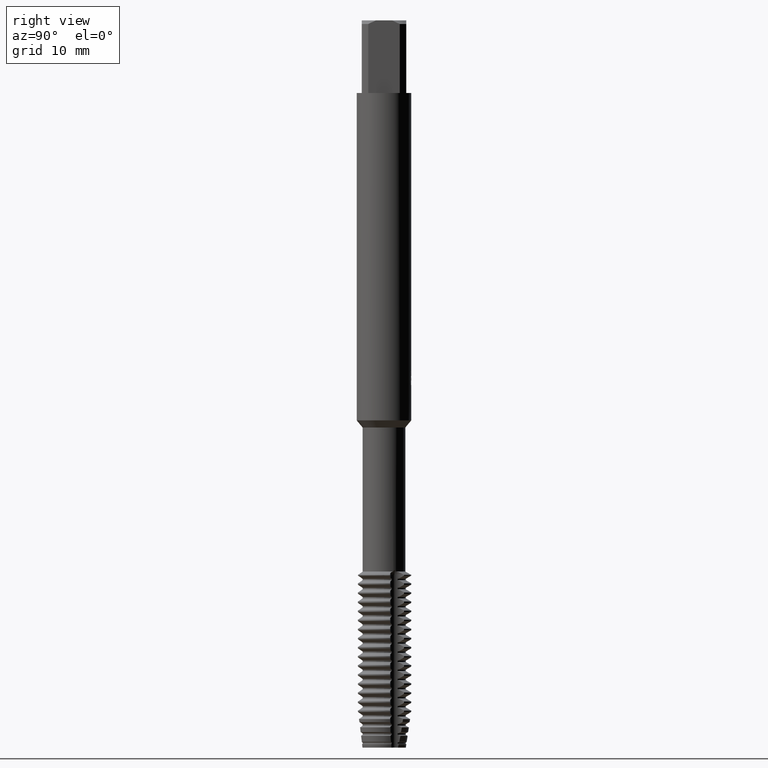
[diagram: clean part render]
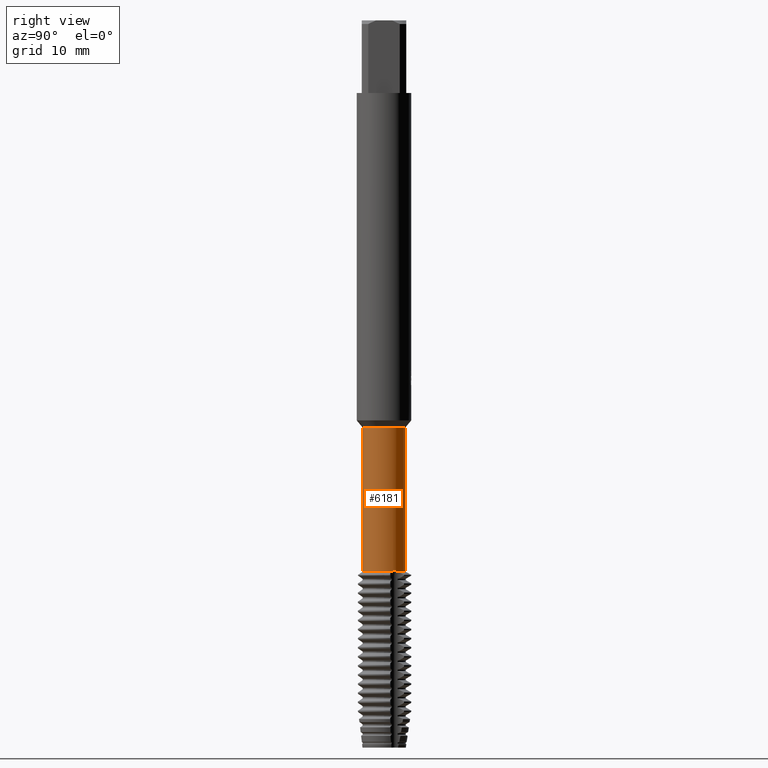
[diagram: same view with one face highlighted and labeled with its STEP entity id]
A machine part, right view. The second image highlights one B-rep face of the part: STEP entity #6181.
In plain terms, the highlighted cylindrical surface (edge-blend (fillet) strip) has radius 2.35 mm, axis along (-0, -0, 1).
Its self-contained STEP definition (entity closure, byte-faithful):
#2563=VERTEX_POINT('',#7343);
#2869=VERTEX_POINT('',#7673);
#3093=VERTEX_POINT('',#7925);
#3173=VERTEX_POINT('',#8011);
#4151=EDGE_CURVE('',#3093,#2563,#9080,.T.);
#4273=EDGE_CURVE('',#5777,#2869,#9215,.T.);
#4609=EDGE_CURVE('',#3093,#2869,#9573,.T.);
#5459=EDGE_CURVE('',#3173,#6693,#10500,.T.);
#5777=VERTEX_POINT('',#10846);
#6003=EDGE_CURVE('',#3173,#2563,#11092,.T.);
#6181=ADVANCED_FACE('',(#11287),#11288,.T.);
#6217=EDGE_CURVE('',#6747,#6991,#11327,.T.);
#6693=VERTEX_POINT('',#11854);
#6747=VERTEX_POINT('',#11913);
#6991=VERTEX_POINT('',#12176);
#7021=EDGE_CURVE('',#5777,#6747,#12209,.T.);
#7069=EDGE_CURVE('',#6693,#6991,#12259,.T.);
#7343=CARTESIAN_POINT('',(0.211345241683001,-2.34047712845435,-60.6247223250267));
#7673=CARTESIAN_POINT('',(2.87782493148259E-016,-2.35,-44.78713929));
#7925=CARTESIAN_POINT('',(-1.12694718254573E-014,-2.35,-60.4834790492951));
#8011=CARTESIAN_POINT('',(2.13258527105949,0.987208215960631,-60.6247223250267));
#9080=B_SPLINE_CURVE_WITH_KNOTS('',3,(#15758,#15759,#15760,#15761,#15762,#15763,#15764,#15765,#15766,#15767,#15768,#15769,#15770,#15771,#15772,#15773),.UNSPECIFIED.,.F.,.F.,(4,2,2,2,2,2,2,4),(0.0,0.141369074491569,0.231115519483961,0.283936715814408,0.328339913005161,0.380715983785305,0.472848920640661,0.613514903783787),.UNSPECIFIED.);
#9215=CIRCLE('',#16005,2.35);
#9573=LINE('',#16647,#16648);
#10500=B_SPLINE_CURVE_WITH_KNOTS('',3,(#18277,#18278,#18279,#18280,#18281,#18282,#18283,#18284,#18285,#18286,#18287,#18288,#18289,#18290),.UNSPECIFIED.,.F.,.F.,(4,2,2,2,2,2,4),(0.0,0.151596149817205,0.250672198380212,0.328905661544642,0.413939792995808,0.51109737142697,0.632170146268567),.UNSPECIFIED.);
#10846=CARTESIAN_POINT('',(0.0,2.35,-44.78713929));
#11092=CIRCLE('',#19341,2.35);
#11287=FACE_OUTER_BOUND('',#19645,.T.);
#11288=CYLINDRICAL_SURFACE('',#19646,2.35);
#11327=CIRCLE('',#19716,2.35);
#11854=CARTESIAN_POINT('',(2.03515969889572,1.17499999999604,-60.4834790492952));
#11913=CARTESIAN_POINT('',(-2.87782493148259E-016,2.35,-60.6247223250267));
#12176=CARTESIAN_POINT('',(1.9212400293764,1.35326891249367,-60.6247223250267));
#12209=LINE('',#21251,#21252);
#12259=B_SPLINE_CURVE_WITH_KNOTS('',3,(#21316,#21317,#21318,#21319,#21320,#21321,#21322,#21323,#21324,#21325,#21326,#21327,#21328,#21329),.UNSPECIFIED.,.F.,.F.,(4,2,2,2,2,2,4),(0.0,0.151596149817205,0.250672198380212,0.328905661544642,0.413939792995808,0.51109737142697,0.632170146268567),.UNSPECIFIED.);
#15758=CARTESIAN_POINT('',(-0.211345241683045,-2.34047712845435,-60.6247223250267));
#15759=CARTESIAN_POINT('',(-0.186371778089328,-2.34273223389192,-60.5848247049877));
#15760=CARTESIAN_POINT('',(-0.157729235801253,-2.34490912415604,-60.5526191734759));
#15761=CARTESIAN_POINT('',(-0.106695056002144,-2.3476605462939,-60.5140269537798));
#15762=CARTESIAN_POINT('',(-0.0849221198577286,-2.34858277293876,-60.5018282113396));
#15763=CARTESIAN_POINT('',(-0.0475848627797195,-2.34955893206529,-60.4891145547684));
#15764=CARTESIAN_POINT('',(-0.0333498603456174,-2.34980832874019,-60.4859276392134));
#15765=CARTESIAN_POINT('',(-0.0065889765031015,-2.35002254676409,-60.4831899823274));
#15766=CARTESIAN_POINT('',(0.00566989551317145,-2.35002497518447,-60.4831591729874));
#15767=CARTESIAN_POINT('',(0.0323214250750026,-2.349821988338,-60.4857528250491));
#15768=CARTESIAN_POINT('',(0.0464542262875997,-2.34958104443119,-60.4888305622487));
#15769=CARTESIAN_POINT('',(0.084380630214124,-2.34860915863854,-60.5014779921079));
#15770=CARTESIAN_POINT('',(0.106746557859967,-2.34766240965518,-60.5139871751828));
#15771=CARTESIAN_POINT('',(0.158059832790452,-2.34488405783944,-60.552992054623));
#15772=CARTESIAN_POINT('',(0.186515059218269,-2.34271929559637,-60.5850536110031));
#15773=CARTESIAN_POINT('',(0.211345241683046,-2.34047712845435,-60.6247223250267));
#16005=AXIS2_PLACEMENT_3D('',#23983,#23984,#23985);
#16647=CARTESIAN_POINT('',(2.87782493148259E-016,-2.35,-52.7059308075134));
#16648=VECTOR('',#24311,1.0);
#18277=CARTESIAN_POINT('',(2.13258527105944,0.987208215960712,-60.6247223250267));
#18278=CARTESIAN_POINT('',(2.12128947363031,1.0116096044751,-60.5819383879702));
#18279=CARTESIAN_POINT('',(2.10779323017565,1.03964409995839,-60.5479597418296));
#18280=CARTESIAN_POINT('',(2.08224063182709,1.08961739730816,-60.5083152253233));
#18281=CARTESIAN_POINT('',(2.07085280494027,1.11119675837678,-60.4962296153259));
#18282=CARTESIAN_POINT('',(2.04817116844247,1.15235620634683,-60.4841351669634));
#18283=CARTESIAN_POINT('',(2.0376984941122,1.17078583343712,-60.482308710992));
#18284=CARTESIAN_POINT('',(2.01518150125914,1.2091652539677,-60.4862759900697));
#18285=CARTESIAN_POINT('',(2.00359645571641,1.22822882030294,-60.4926517876256));
#18286=CARTESIAN_POINT('',(1.97963559385637,1.26654000273344,-60.5138012425371));
#18287=CARTESIAN_POINT('',(1.96770326881497,1.28492303951639,-60.529353074414));
#18288=CARTESIAN_POINT('',(1.94335131833043,1.32154492393728,-60.5699525112864));
#18289=CARTESIAN_POINT('',(1.93143731989413,1.33879178784167,-60.5965467168323));
#18290=CARTESIAN_POINT('',(1.92124002937641,1.35326891249365,-60.6247223250267));
#19341=AXIS2_PLACEMENT_3D('',#25907,#25908,#25909);
#19645=EDGE_LOOP('',(#26147,#26148,#26149,#26150,#26151,#26152,#26153,#26154));
#19646=AXIS2_PLACEMENT_3D('',#26155,#26156,#26157);
#19716=AXIS2_PLACEMENT_3D('',#26198,#26199,#26200);
#21251=CARTESIAN_POINT('',(-2.87782493148259E-016,2.35,-52.7059308075134));
#21252=VECTOR('',#27314,1.0);
#21316=CARTESIAN_POINT('',(2.13258527105944,0.987208215960712,-60.6247223250267));
#21317=CARTESIAN_POINT('',(2.12128947363031,1.0116096044751,-60.5819383879702));
#21318=CARTESIAN_POINT('',(2.10779323017565,1.03964409995839,-60.5479597418296));
#21319=CARTESIAN_POINT('',(2.08224063182709,1.08961739730816,-60.5083152253233));
#21320=CARTESIAN_POINT('',(2.07085280494027,1.11119675837678,-60.4962296153259));
#21321=CARTESIAN_POINT('',(2.04817116844247,1.15235620634683,-60.4841351669634));
#21322=CARTESIAN_POINT('',(2.0376984941122,1.17078583343712,-60.482308710992));
#21323=CARTESIAN_POINT('',(2.01518150125914,1.2091652539677,-60.4862759900697));
#21324=CARTESIAN_POINT('',(2.00359645571641,1.22822882030294,-60.4926517876256));
#21325=CARTESIAN_POINT('',(1.97963559385637,1.26654000273344,-60.5138012425371));
#21326=CARTESIAN_POINT('',(1.96770326881497,1.28492303951639,-60.529353074414));
#21327=CARTESIAN_POINT('',(1.94335131833043,1.32154492393728,-60.5699525112864));
#21328=CARTESIAN_POINT('',(1.93143731989413,1.33879178784167,-60.5965467168323));
#21329=CARTESIAN_POINT('',(1.92124002937641,1.35326891249365,-60.6247223250267));
#23983=CARTESIAN_POINT('',(0.0,0.0,-44.78713929));
#23984=DIRECTION('',(0.0,0.0,-1.0));
#23985=DIRECTION('',(0.0,1.0,0.0));
#24311=DIRECTION('',(-0.0,-0.0,1.0));
#25907=CARTESIAN_POINT('',(0.0,0.0,-60.6247223250267));
#25908=DIRECTION('',(0.0,0.0,-1.0));
#25909=DIRECTION('',(0.0,1.0,0.0));
#26147=ORIENTED_EDGE('',*,*,#7021,.F.);
#26148=ORIENTED_EDGE('',*,*,#4273,.T.);
#26149=ORIENTED_EDGE('',*,*,#4609,.F.);
#26150=ORIENTED_EDGE('',*,*,#4151,.T.);
#26151=ORIENTED_EDGE('',*,*,#6003,.F.);
#26152=ORIENTED_EDGE('',*,*,#5459,.T.);
#26153=ORIENTED_EDGE('',*,*,#7069,.T.);
#26154=ORIENTED_EDGE('',*,*,#6217,.F.);
#26155=CARTESIAN_POINT('',(0.0,0.0,-52.7059308075134));
#26156=DIRECTION('',(-0.0,-0.0,1.0));
#26157=DIRECTION('',(0.0,1.0,0.0));
#26198=CARTESIAN_POINT('',(0.0,0.0,-60.6247223250267));
#26199=DIRECTION('',(0.0,0.0,-1.0));
#26200=DIRECTION('',(0.0,1.0,0.0));
#27314=DIRECTION('',(0.0,0.0,-1.0));